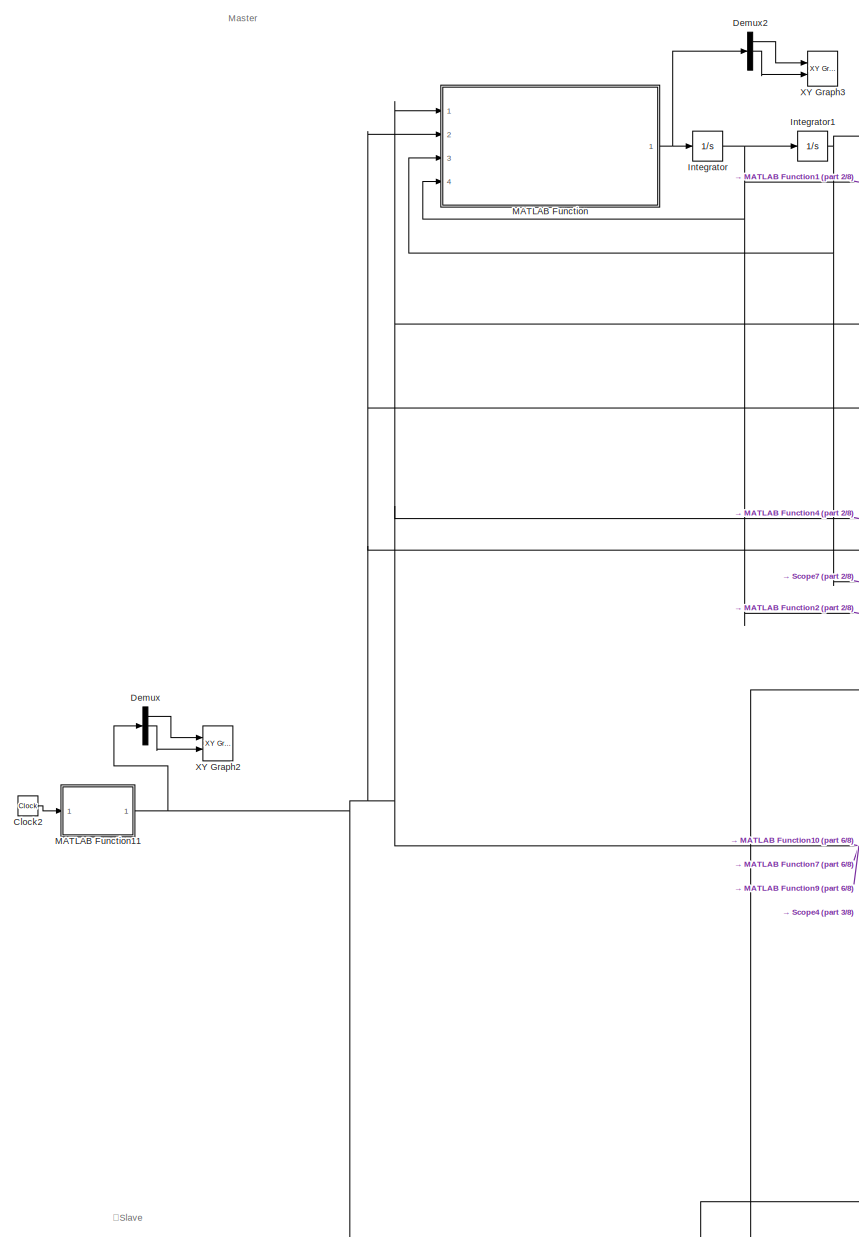
[diagram: root canvas - part 1/8, top left region]
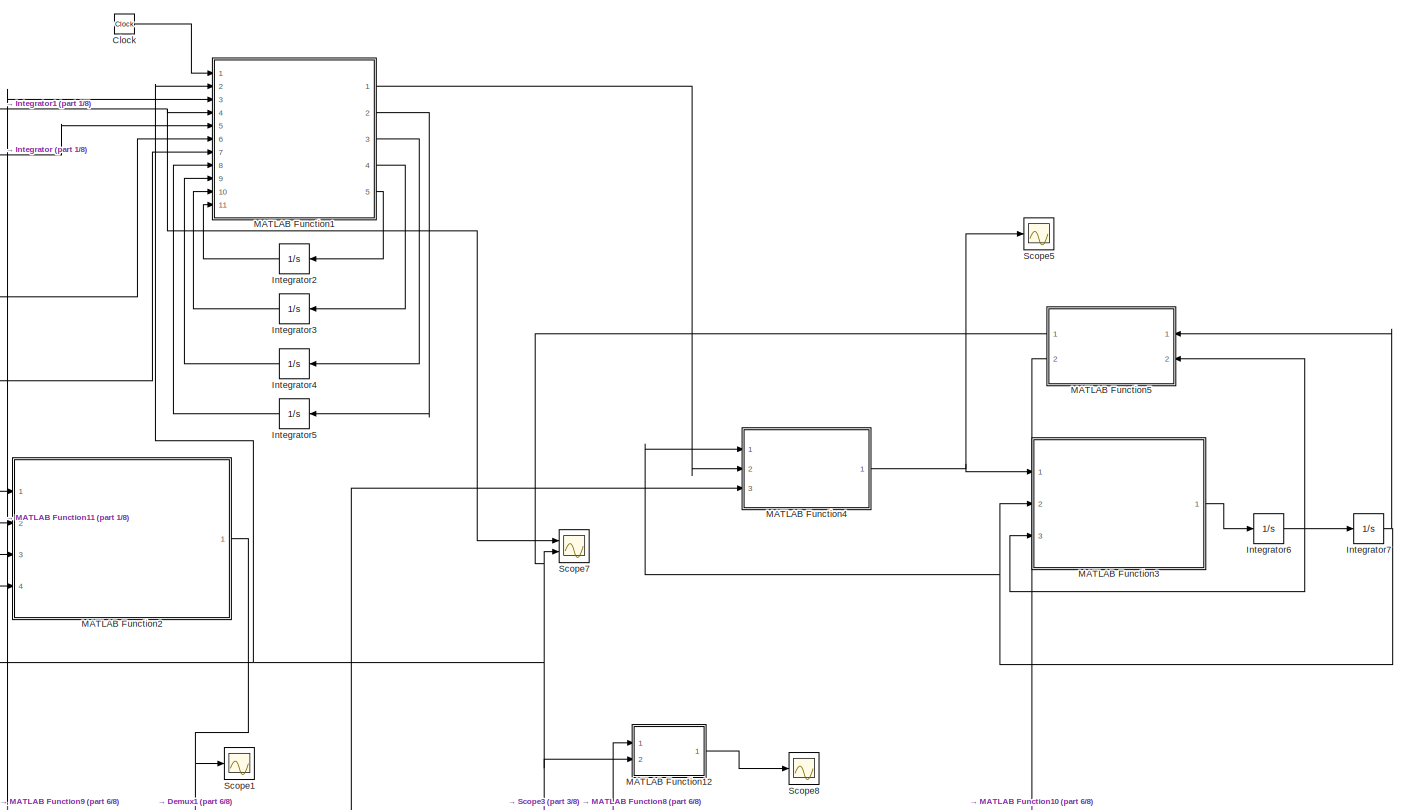
[diagram: root canvas - part 2/8, top center region]
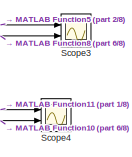
[diagram: root canvas - part 3/8, middle right region]
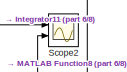
[diagram: root canvas - part 4/8, middle right region]
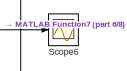
[diagram: root canvas - part 5/8, middle right region]
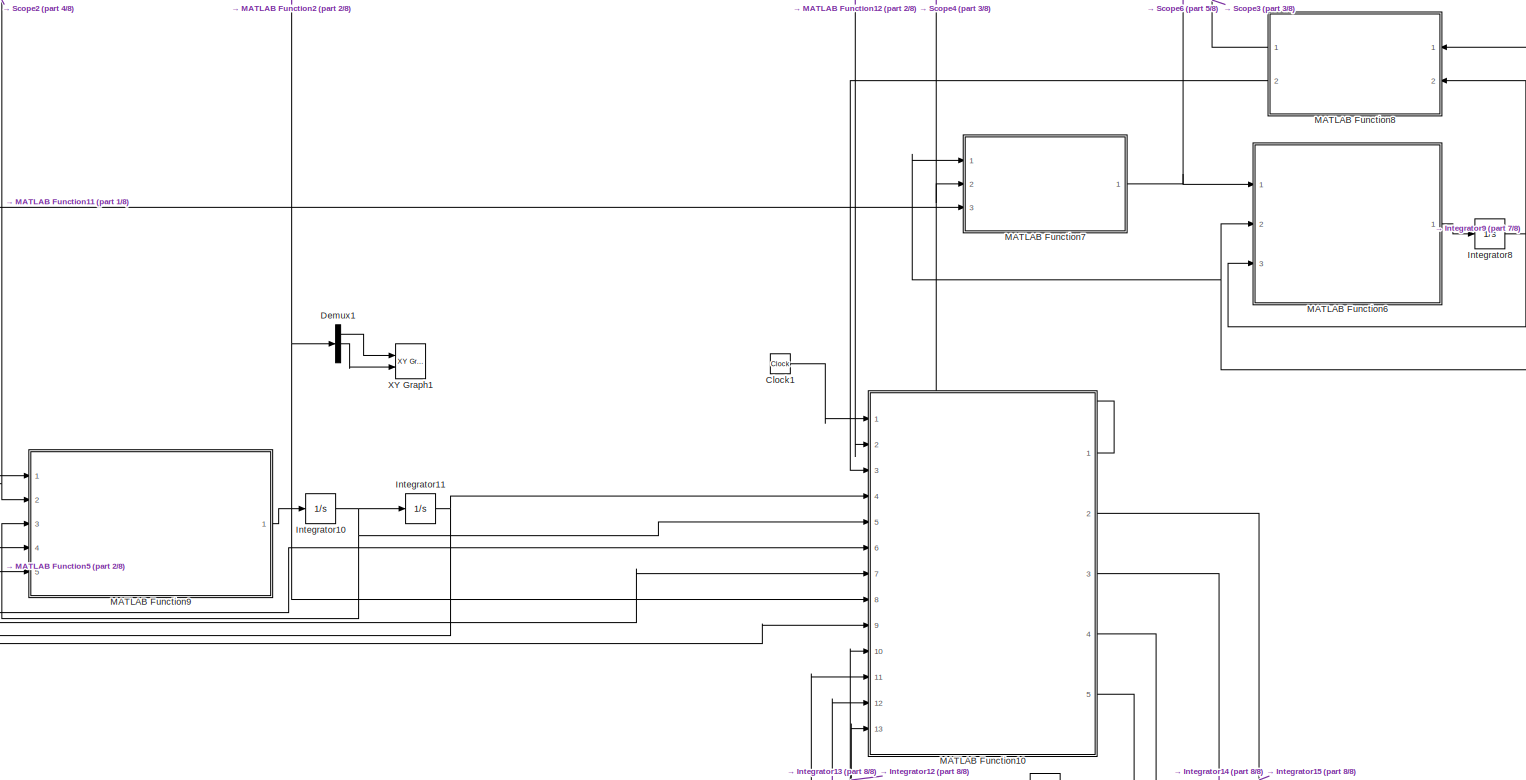
[diagram: root canvas - part 6/8, bottom center region]
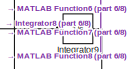
[diagram: root canvas - part 7/8, bottom right region]
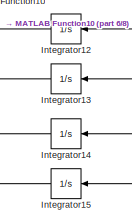
[diagram: root canvas - part 8/8, bottom right region]
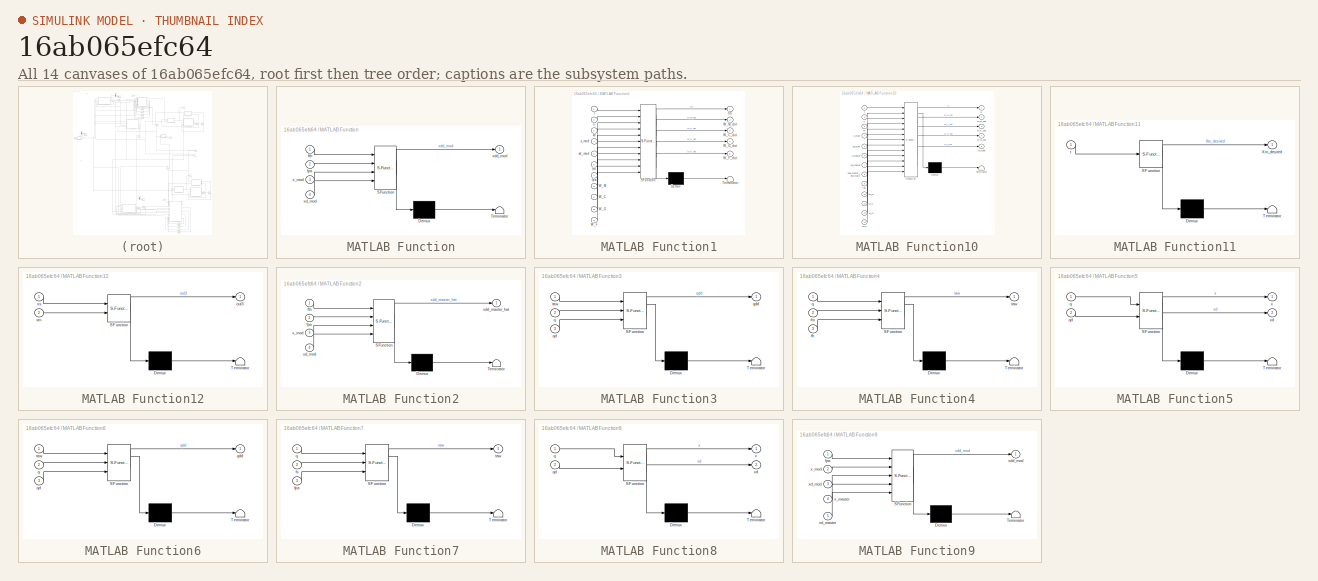
[diagram: thumbnail index - all 14 canvases of the model, root first then tree order]
MODEL slx_16ab065efc64
KIND model
CONFIG AbsTol = auto
CONFIG EnableMultiTasking = off
CONFIG FixedStep = auto
CONFIG MaxStep = auto
CONFIG MinStep = auto
CONFIG RelTol = 1e-3
CONFIG SampleTimeConstraint = Unconstrained
CONFIG SolverName = VariableStepAuto
CONFIG StartTime = 0.0
CONFIG StopTime = 80
BLOCK [Clock] Clock
BLOCK [Clock] Clock1
BLOCK [Clock] Clock2
BLOCK [Demux] Demux
  Outputs = 3
  Ports = [1, 3]
BLOCK [Demux] Demux1
  Outputs = 3
  Ports = [1, 3]
BLOCK [Demux] Demux2
  Outputs = 3
  Ports = [1, 3]
BLOCK [Integrator] Integrator
  InitialCondition = [1 1 1]'*0
  Ports = [1, 1]
BLOCK [Integrator] Integrator1
  InitialCondition = [1 1 1]'*0
  Ports = [1, 1]
BLOCK [Integrator] Integrator10
  InitialCondition = [1 1 1]'*0
  Ports = [1, 1]
BLOCK [Integrator] Integrator11
  InitialCondition = [1 1 1]'*0
  Ports = [1, 1]
BLOCK [Integrator] Integrator12
  InitialCondition = ones(3, 3)
  Ports = [1, 1]
BLOCK [Integrator] Integrator13
  InitialCondition = ones(3, 3)
  Ports = [1, 1]
BLOCK [Integrator] Integrator14
  InitialCondition = ones(9, 3)
  Ports = [1, 1]
BLOCK [Integrator] Integrator15
  InitialCondition = ones(9, 3)
  Ports = [1, 1]
BLOCK [Integrator] Integrator2
  InitialCondition = ones(3, 3)
  Ports = [1, 1]
BLOCK [Integrator] Integrator3
  InitialCondition = ones(3, 3)
  Ports = [1, 1]
BLOCK [Integrator] Integrator4
  InitialCondition = ones(9, 3)
  Ports = [1, 1]
BLOCK [Integrator] Integrator5
  InitialCondition = ones(9, 3)
  Ports = [1, 1]
BLOCK [Integrator] Integrator6
  InitialCondition = [1 1 1]*0
  Ports = [1, 1]
BLOCK [Integrator] Integrator7
  InitialCondition = [1 1 1]*0
  Ports = [1, 1]
BLOCK [Integrator] Integrator8
  InitialCondition = [1 1 1]*0
  Ports = [1, 1]
BLOCK [Integrator] Integrator9
  InitialCondition = [1 1 1]*0
  Ports = [1, 1]
BLOCK [SubSystem] MATLAB Function
  ErrorFcn = Stateflow.Translate.translate
  PermitHierarchicalResolution = ExplicitOnly
  Ports = [4, 1]
  RequestExecContextInheritance = off
  SFBlockType = MATLAB Function
  TreatAsAtomicUnit = on
BLOCK [Demux] MATLAB Function/ Demux 
  Outputs = 1
  Ports = [1, 1]
BLOCK [S-Function] MATLAB Function/ SFunction 
  EnableBusSupport = on
  FunctionName = sf_sfun
  PortCounts = [4 2]
  Ports = [4, 2]
  SFcnIsStateOwnerBlock = off
  SFunctionDeploymentMode = off
  Tag = Stateflow S-Function 6
BLOCK [Terminator] MATLAB Function/ Terminator 
BLOCK [Inport] MATLAB Function/fpa
  Port = 2
BLOCK [Inport] MATLAB Function/fth
BLOCK [Inport] MATLAB Function/x_mod
  Port = 3
BLOCK [Inport] MATLAB Function/xd_mod
  Port = 4
BLOCK [Outport] MATLAB Function/xdd_mod
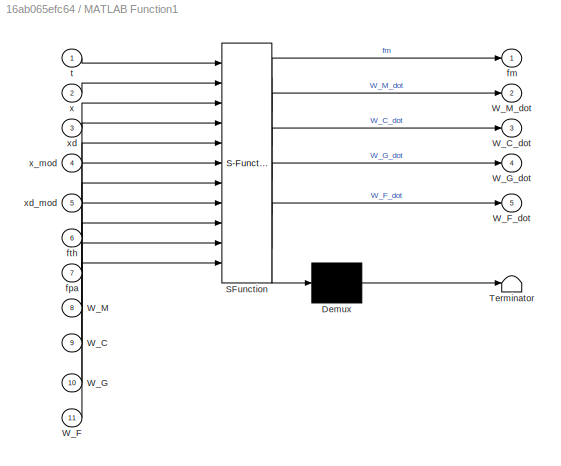
BLOCK [SubSystem] MATLAB Function1
  ErrorFcn = Stateflow.Translate.translate
  PermitHierarchicalResolution = ExplicitOnly
  Ports = [11, 5]
  RequestExecContextInheritance = off
  SFBlockType = MATLAB Function
  TreatAsAtomicUnit = on
BLOCK [Demux] MATLAB Function1/ Demux 
  Outputs = 1
  Ports = [1, 1]
BLOCK [S-Function] MATLAB Function1/ SFunction 
  EnableBusSupport = on
  FunctionName = sf_sfun
  PortCounts = [11 6]
  Ports = [11, 6]
  SFcnIsStateOwnerBlock = off
  SFunctionDeploymentMode = off
  Tag = Stateflow S-Function 13
BLOCK [Terminator] MATLAB Function1/ Terminator 
BLOCK [Inport] MATLAB Function1/W_C
  Port = 9
BLOCK [Outport] MATLAB Function1/W_C_dot
  Port = 3
BLOCK [Inport] MATLAB Function1/W_F
  Port = 11
BLOCK [Outport] MATLAB Function1/W_F_dot
  Port = 5
BLOCK [Inport] MATLAB Function1/W_G
  Port = 10
BLOCK [Outport] MATLAB Function1/W_G_dot
  Port = 4
BLOCK [Inport] MATLAB Function1/W_M
  Port = 8
BLOCK [Outport] MATLAB Function1/W_M_dot
  Port = 2
BLOCK [Outport] MATLAB Function1/fm
BLOCK [Inport] MATLAB Function1/fpa
  Port = 7
BLOCK [Inport] MATLAB Function1/fth
  Port = 6
BLOCK [Inport] MATLAB Function1/t
BLOCK [Inport] MATLAB Function1/x
  Port = 2
BLOCK [Inport] MATLAB Function1/x_mod
  Port = 4
BLOCK [Inport] MATLAB Function1/xd
  Port = 3
BLOCK [Inport] MATLAB Function1/xd_mod
  Port = 5
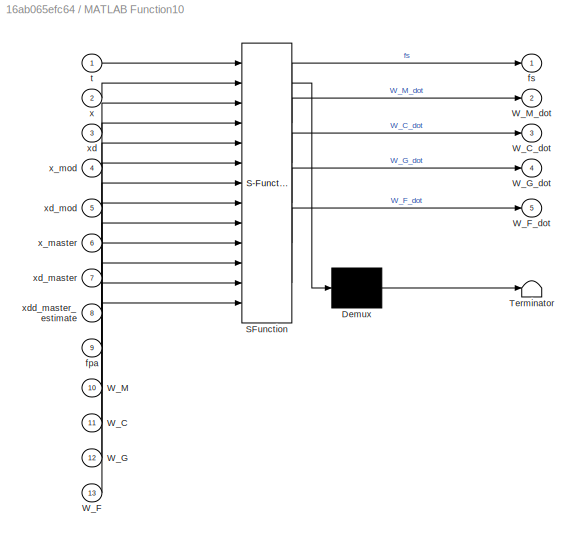
BLOCK [SubSystem] MATLAB Function10
  ErrorFcn = Stateflow.Translate.translate
  PermitHierarchicalResolution = ExplicitOnly
  Ports = [13, 5]
  RequestExecContextInheritance = off
  SFBlockType = MATLAB Function
  TreatAsAtomicUnit = on
BLOCK [Demux] MATLAB Function10/ Demux 
  Outputs = 1
  Ports = [1, 1]
BLOCK [S-Function] MATLAB Function10/ SFunction 
  EnableBusSupport = on
  FunctionName = sf_sfun
  PortCounts = [13 6]
  Ports = [13, 6]
  SFcnIsStateOwnerBlock = off
  SFunctionDeploymentMode = off
  Tag = Stateflow S-Function 10
BLOCK [Terminator] MATLAB Function10/ Terminator 
BLOCK [Inport] MATLAB Function10/W_C
  Port = 11
BLOCK [Outport] MATLAB Function10/W_C_dot
  Port = 3
BLOCK [Inport] MATLAB Function10/W_F
  Port = 13
BLOCK [Outport] MATLAB Function10/W_F_dot
  Port = 5
BLOCK [Inport] MATLAB Function10/W_G
  Port = 12
BLOCK [Outport] MATLAB Function10/W_G_dot
  Port = 4
BLOCK [Inport] MATLAB Function10/W_M
  Port = 10
BLOCK [Outport] MATLAB Function10/W_M_dot
  Port = 2
BLOCK [Inport] MATLAB Function10/fpa
  Port = 9
BLOCK [Outport] MATLAB Function10/fs
BLOCK [Inport] MATLAB Function10/t
BLOCK [Inport] MATLAB Function10/x
  Port = 2
BLOCK [Inport] MATLAB Function10/x_master
  Port = 6
BLOCK [Inport] MATLAB Function10/x_mod
  Port = 4
BLOCK [Inport] MATLAB Function10/xd
  Port = 3
BLOCK [Inport] MATLAB Function10/xd_master
  Port = 7
BLOCK [Inport] MATLAB Function10/xd_mod
  Port = 5
BLOCK [Inport] MATLAB Function10/xdd_master_estimate
  Port = 8
BLOCK [SubSystem] MATLAB Function11
  ErrorFcn = Stateflow.Translate.translate
  PermitHierarchicalResolution = ExplicitOnly
  Ports = [1, 1]
  RequestExecContextInheritance = off
  SFBlockType = MATLAB Function
  TreatAsAtomicUnit = on
BLOCK [Demux] MATLAB Function11/ Demux 
  Outputs = 1
  Ports = [1, 1]
BLOCK [S-Function] MATLAB Function11/ SFunction 
  EnableBusSupport = on
  FunctionName = sf_sfun
  PortCounts = [1 2]
  Ports = [1, 2]
  SFcnIsStateOwnerBlock = off
  SFunctionDeploymentMode = off
  Tag = Stateflow S-Function 5
BLOCK [Terminator] MATLAB Function11/ Terminator 
BLOCK [Outport] MATLAB Function11/Xm_desired
BLOCK [Inport] MATLAB Function11/t
BLOCK [SubSystem] MATLAB Function12
  ErrorFcn = Stateflow.Translate.translate
  PermitHierarchicalResolution = ExplicitOnly
  Ports = [2, 1]
  RequestExecContextInheritance = off
  SFBlockType = MATLAB Function
  TreatAsAtomicUnit = on
BLOCK [Demux] MATLAB Function12/ Demux 
  Outputs = 1
  Ports = [1, 1]
BLOCK [S-Function] MATLAB Function12/ SFunction 
  EnableBusSupport = on
  FunctionName = sf_sfun
  PortCounts = [2 2]
  Ports = [2, 2]
  SFcnIsStateOwnerBlock = off
  SFunctionDeploymentMode = off
  Tag = Stateflow S-Function 7
BLOCK [Terminator] MATLAB Function12/ Terminator 
BLOCK [Outport] MATLAB Function12/out3
BLOCK [Inport] MATLAB Function12/xm
  Port = 2
BLOCK [Inport] MATLAB Function12/xs
BLOCK [SubSystem] MATLAB Function2
  ErrorFcn = Stateflow.Translate.translate
  PermitHierarchicalResolution = ExplicitOnly
  Ports = [4, 1]
  RequestExecContextInheritance = off
  SFBlockType = MATLAB Function
  TreatAsAtomicUnit = on
BLOCK [Demux] MATLAB Function2/ Demux 
  Outputs = 1
  Ports = [1, 1]
BLOCK [S-Function] MATLAB Function2/ SFunction 
  EnableBusSupport = on
  FunctionName = sf_sfun
  PortCounts = [4 2]
  Ports = [4, 2]
  SFcnIsStateOwnerBlock = off
  SFunctionDeploymentMode = off
  Tag = Stateflow S-Function 14
BLOCK [Terminator] MATLAB Function2/ Terminator 
BLOCK [Inport] MATLAB Function2/fpa
  Port = 2
BLOCK [Inport] MATLAB Function2/fth
BLOCK [Inport] MATLAB Function2/x_mod
  Port = 3
BLOCK [Inport] MATLAB Function2/xd_mod
  Port = 4
BLOCK [Outport] MATLAB Function2/xdd_master_hat
BLOCK [SubSystem] MATLAB Function3
  ErrorFcn = Stateflow.Translate.translate
  PermitHierarchicalResolution = ExplicitOnly
  Ports = [3, 1]
  RequestExecContextInheritance = off
  SFBlockType = MATLAB Function
  TreatAsAtomicUnit = on
BLOCK [Demux] MATLAB Function3/ Demux 
  Outputs = 1
  Ports = [1, 1]
BLOCK [S-Function] MATLAB Function3/ SFunction 
  EnableBusSupport = on
  FunctionName = sf_sfun
  PortCounts = [3 2]
  Ports = [3, 2]
  SFcnIsStateOwnerBlock = off
  SFunctionDeploymentMode = off
  Tag = Stateflow S-Function 1
BLOCK [Terminator] MATLAB Function3/ Terminator 
BLOCK [Inport] MATLAB Function3/q
  Port = 2
BLOCK [Inport] MATLAB Function3/qd
  Port = 3
BLOCK [Outport] MATLAB Function3/qdd
BLOCK [Inport] MATLAB Function3/taw
BLOCK [SubSystem] MATLAB Function4
  ErrorFcn = Stateflow.Translate.translate
  PermitHierarchicalResolution = ExplicitOnly
  Ports = [3, 1]
  RequestExecContextInheritance = off
  SFBlockType = MATLAB Function
  TreatAsAtomicUnit = on
BLOCK [Demux] MATLAB Function4/ Demux 
  Outputs = 1
  Ports = [1, 1]
BLOCK [S-Function] MATLAB Function4/ SFunction 
  EnableBusSupport = on
  FunctionName = sf_sfun
  PortCounts = [3 2]
  Ports = [3, 2]
  SFcnIsStateOwnerBlock = off
  SFunctionDeploymentMode = off
  Tag = Stateflow S-Function 3
BLOCK [Terminator] MATLAB Function4/ Terminator 
BLOCK [Inport] MATLAB Function4/fh
  Port = 3
BLOCK [Inport] MATLAB Function4/fm
  Port = 2
BLOCK [Inport] MATLAB Function4/q
BLOCK [Outport] MATLAB Function4/taw
BLOCK [SubSystem] MATLAB Function5
  ErrorFcn = Stateflow.Translate.translate
  PermitHierarchicalResolution = ExplicitOnly
  Ports = [2, 2]
  RequestExecContextInheritance = off
  SFBlockType = MATLAB Function
  TreatAsAtomicUnit = on
BLOCK [Demux] MATLAB Function5/ Demux 
  Outputs = 1
  Ports = [1, 1]
BLOCK [S-Function] MATLAB Function5/ SFunction 
  EnableBusSupport = on
  FunctionName = sf_sfun
  PortCounts = [2 3]
  Ports = [2, 3]
  SFcnIsStateOwnerBlock = off
  SFunctionDeploymentMode = off
  Tag = Stateflow S-Function 4
BLOCK [Terminator] MATLAB Function5/ Terminator 
BLOCK [Inport] MATLAB Function5/q
BLOCK [Inport] MATLAB Function5/qd
  Port = 2
BLOCK [Outport] MATLAB Function5/x
BLOCK [Outport] MATLAB Function5/xd
  Port = 2
BLOCK [SubSystem] MATLAB Function6
  ErrorFcn = Stateflow.Translate.translate
  PermitHierarchicalResolution = ExplicitOnly
  Ports = [3, 1]
  RequestExecContextInheritance = off
  SFBlockType = MATLAB Function
  TreatAsAtomicUnit = on
BLOCK [Demux] MATLAB Function6/ Demux 
  Outputs = 1
  Ports = [1, 1]
BLOCK [S-Function] MATLAB Function6/ SFunction 
  EnableBusSupport = on
  FunctionName = sf_sfun
  PortCounts = [3 2]
  Ports = [3, 2]
  SFcnIsStateOwnerBlock = off
  SFunctionDeploymentMode = off
  Tag = Stateflow S-Function 2
BLOCK [Terminator] MATLAB Function6/ Terminator 
BLOCK [Inport] MATLAB Function6/q
  Port = 2
BLOCK [Inport] MATLAB Function6/qd
  Port = 3
BLOCK [Outport] MATLAB Function6/qdd
BLOCK [Inport] MATLAB Function6/taw
BLOCK [SubSystem] MATLAB Function7
  ErrorFcn = Stateflow.Translate.translate
  PermitHierarchicalResolution = ExplicitOnly
  Ports = [3, 1]
  RequestExecContextInheritance = off
  SFBlockType = MATLAB Function
  TreatAsAtomicUnit = on
BLOCK [Demux] MATLAB Function7/ Demux 
  Outputs = 1
  Ports = [1, 1]
BLOCK [S-Function] MATLAB Function7/ SFunction 
  EnableBusSupport = on
  FunctionName = sf_sfun
  PortCounts = [3 2]
  Ports = [3, 2]
  SFcnIsStateOwnerBlock = off
  SFunctionDeploymentMode = off
  Tag = Stateflow S-Function 8
BLOCK [Terminator] MATLAB Function7/ Terminator 
BLOCK [Inport] MATLAB Function7/fpa
  Port = 3
BLOCK [Inport] MATLAB Function7/fs
  Port = 2
BLOCK [Inport] MATLAB Function7/q
BLOCK [Outport] MATLAB Function7/taw
BLOCK [SubSystem] MATLAB Function8
  ErrorFcn = Stateflow.Translate.translate
  PermitHierarchicalResolution = ExplicitOnly
  Ports = [2, 2]
  RequestExecContextInheritance = off
  SFBlockType = MATLAB Function
  TreatAsAtomicUnit = on
BLOCK [Demux] MATLAB Function8/ Demux 
  Outputs = 1
  Ports = [1, 1]
BLOCK [S-Function] MATLAB Function8/ SFunction 
  EnableBusSupport = on
  FunctionName = sf_sfun
  PortCounts = [2 3]
  Ports = [2, 3]
  SFcnIsStateOwnerBlock = off
  SFunctionDeploymentMode = off
  Tag = Stateflow S-Function 9
BLOCK [Terminator] MATLAB Function8/ Terminator 
BLOCK [Inport] MATLAB Function8/q
BLOCK [Inport] MATLAB Function8/qd
  Port = 2
BLOCK [Outport] MATLAB Function8/x
BLOCK [Outport] MATLAB Function8/xd
  Port = 2
BLOCK [SubSystem] MATLAB Function9
  ErrorFcn = Stateflow.Translate.translate
  PermitHierarchicalResolution = ExplicitOnly
  Ports = [5, 1]
  RequestExecContextInheritance = off
  SFBlockType = MATLAB Function
  TreatAsAtomicUnit = on
BLOCK [Demux] MATLAB Function9/ Demux 
  Outputs = 1
  Ports = [1, 1]
BLOCK [S-Function] MATLAB Function9/ SFunction 
  EnableBusSupport = on
  FunctionName = sf_sfun
  PortCounts = [5 2]
  Ports = [5, 2]
  SFcnIsStateOwnerBlock = off
  SFunctionDeploymentMode = off
  Tag = Stateflow S-Function 11
BLOCK [Terminator] MATLAB Function9/ Terminator 
BLOCK [Inport] MATLAB Function9/fpa
BLOCK [Inport] MATLAB Function9/x_master
  Port = 4
BLOCK [Inport] MATLAB Function9/x_mod
  Port = 2
BLOCK [Inport] MATLAB Function9/xd_master
  Port = 5
BLOCK [Inport] MATLAB Function9/xd_mod
  Port = 3
BLOCK [Outport] MATLAB Function9/xdd_mod
BLOCK [Scope] Scope1
  Floating = off
  NumInputPorts = 1
  Ports = [1]
  ScopeSpecificationString = Simulink.scopes.TimeScopeBlockCfg('CurrentConfiguration', extmgr.ConfigurationSet(extmgr.Configuration('Core','General UI',true,'FigureColor',[1 1 1]),extmgr.Configuration('Core','Source UI',true),extmgr.Configuration('Sources','WiredSimulink',true,'DataLoggingVariableName','ScopeData2'),extmgr.Configuration('Visuals','Time Domain',true,'SerializedDisplays',{struct('MinYLimReal','-118.74959','MaxY...<+1650ch>
BLOCK [Scope] Scope2
  Floating = off
  NumInputPorts = 2
  Ports = [2]
  ScopeSpecificationString = Simulink.scopes.TimeScopeBlockCfg('CurrentConfiguration', extmgr.ConfigurationSet(extmgr.Configuration('Core','General UI',true,'FigureColor',[1 1 1]),extmgr.Configuration('Core','Source UI',true),extmgr.Configuration('Sources','WiredSimulink',true,'DataLoggingVariableName','ScopeData3'),extmgr.Configuration('Visuals','Time Domain',true,'SerializedDisplays',{struct('MinYLimReal','-1.52867','MaxYLi...<+2652ch>
BLOCK [Scope] Scope3
  Floating = off
  NumInputPorts = 2
  Ports = [2]
  ScopeSpecificationString = Simulink.scopes.TimeScopeBlockCfg('CurrentConfiguration', extmgr.ConfigurationSet(extmgr.Configuration('Core','General UI',true,'FigureColor',[1 1 1]),extmgr.Configuration('Core','Source UI',true),extmgr.Configuration('Sources','WiredSimulink',true,'DataLoggingVariableName','ScopeData1'),extmgr.Configuration('Visuals','Time Domain',true,'TimeAxisLabels','All','SerializedDisplays',{struct('MinYLimR...<+2396ch>
BLOCK [Scope] Scope4
  Floating = off
  NumInputPorts = 2
  Ports = [2]
  ScopeSpecificationString = Simulink.scopes.TimeScopeBlockCfg('CurrentConfiguration', extmgr.ConfigurationSet(extmgr.Configuration('Core','General UI',true,'FigureColor',[1 1 1]),extmgr.Configuration('Core','Source UI',true),extmgr.Configuration('Sources','WiredSimulink',true,'DataLoggingVariableName','ScopeData5'),extmgr.Configuration('Visuals','Time Domain',true,'SerializedDisplays',{struct('MinYLimReal','-12419.09842','Ma...<+2237ch>
BLOCK [Scope] Scope5
  Floating = off
  NumInputPorts = 1
  Ports = [1]
  ScopeSpecificationString = Simulink.scopes.TimeScopeBlockCfg('CurrentConfiguration', extmgr.ConfigurationSet(extmgr.Configuration('Core','General UI',true,'FigureColor',[1 1 1]),extmgr.Configuration('Core','Source UI',true),extmgr.Configuration('Sources','WiredSimulink',true,'DataLoggingVariableName','ScopeData1'),extmgr.Configuration('Visuals','Time Domain',true,'SerializedDisplays',{struct('MinYLimReal','-140.711','MaxYLi...<+1882ch>
BLOCK [Scope] Scope6
  Floating = off
  NumInputPorts = 1
  Ports = [1]
  ScopeSpecificationString = Simulink.scopes.TimeScopeBlockCfg('CurrentConfiguration', extmgr.ConfigurationSet(extmgr.Configuration('Core','General UI',true,'FigureColor',[1 1 1]),extmgr.Configuration('Core','Source UI',true),extmgr.Configuration('Sources','WiredSimulink',true,'DataLoggingVariableName','ScopeData2'),extmgr.Configuration('Visuals','Time Domain',true,'SerializedDisplays',{struct('MinYLimReal','-182.25411','MaxY...<+1884ch>
BLOCK [Scope] Scope7
  Floating = off
  NumInputPorts = 2
  Ports = [2]
  ScopeSpecificationString = Simulink.scopes.TimeScopeBlockCfg('CurrentConfiguration', extmgr.ConfigurationSet(extmgr.Configuration('Core','General UI',true,'FigureColor',[1 1 1]),extmgr.Configuration('Core','Source UI',true),extmgr.Configuration('Sources','WiredSimulink',true,'DataLoggingVariableName','ScopeData1'),extmgr.Configuration('Visuals','Time Domain',true,'TimeAxisLabels','All','SerializedDisplays',{struct('MinYLimR...<+2515ch>
BLOCK [Scope] Scope8
  Floating = off
  NumInputPorts = 1
  Ports = [1]
  ScopeSpecificationString = Simulink.scopes.TimeScopeBlockCfg('CurrentConfiguration', extmgr.ConfigurationSet(extmgr.Configuration('Core','General UI',true,'FigureColor',[1 1 1]),extmgr.Configuration('Core','Source UI',true),extmgr.Configuration('Sources','WiredSimulink',true,'DataLoggingVariableName','ScopeData2'),extmgr.Configuration('Visuals','Time Domain',true,'SerializedDisplays',{struct('MinYLimReal','-0.05138','MaxYLi...<+2025ch>
BLOCK [Reference] XY Graph1  REF=simulink/Sinks/XY Graph
  Ports = [2]
  SourceBlock = simulink/Sinks/XY Graph
  SourceProductBaseCode = SL
  SourceType = XY scope.
BLOCK [Reference] XY Graph2  REF=simulink/Sinks/XY Graph
  Ports = [2]
  SourceBlock = simulink/Sinks/XY Graph
  SourceProductBaseCode = SL
  SourceType = XY scope.
BLOCK [Reference] XY Graph3  REF=simulink/Sinks/XY Graph
  Ports = [2]
  SourceBlock = simulink/Sinks/XY Graph
  SourceProductBaseCode = SL
  SourceType = XY scope.
ANNOTATION (root): Master
ANNOTATION (root): ُSlave
LINE Clock1:1 -> MATLAB Function10:1
LINE Clock2:1 -> MATLAB Function11:1
LINE Clock:1 -> MATLAB Function1:1
LINE Demux1:1 -> XY Graph1:1
LINE Demux1:2 -> XY Graph1:2
LINE Demux2:1 -> XY Graph3:1
LINE Demux2:2 -> XY Graph3:2
LINE Demux:1 -> XY Graph2:1
LINE Demux:2 -> XY Graph2:2
NET Integrator10:1 -> Integrator11:1, MATLAB Function10:5, MATLAB Function9:3
NET Integrator11:1 -> MATLAB Function10:4, MATLAB Function9:2, Scope2:1
LINE Integrator12:1 -> MATLAB Function10:13
LINE Integrator13:1 -> MATLAB Function10:12
LINE Integrator14:1 -> MATLAB Function10:11
LINE Integrator15:1 -> MATLAB Function10:10
NET Integrator1:1 -> MATLAB Function1:4, MATLAB Function2:3, MATLAB Function:3, Scope7:1
LINE Integrator2:1 -> MATLAB Function1:11
LINE Integrator3:1 -> MATLAB Function1:10
LINE Integrator4:1 -> MATLAB Function1:9
LINE Integrator5:1 -> MATLAB Function1:8
NET Integrator6:1 -> Integrator7:1, MATLAB Function3:3, MATLAB Function5:2
NET Integrator7:1 -> MATLAB Function3:2, MATLAB Function4:1, MATLAB Function5:1
NET Integrator8:1 -> Integrator9:1, MATLAB Function6:3, MATLAB Function8:2
NET Integrator9:1 -> MATLAB Function6:2, MATLAB Function7:1, MATLAB Function8:1
NET Integrator:1 -> Integrator1:1, MATLAB Function1:5, MATLAB Function2:4, MATLAB Function:4
NET MATLAB Function10:1 -> MATLAB Function7:2, Scope4:2
LINE MATLAB Function10:2 -> Integrator15:1
LINE MATLAB Function10:3 -> Integrator14:1
LINE MATLAB Function10:4 -> Integrator13:1
LINE MATLAB Function10:5 -> Integrator12:1
NET MATLAB Function11:1 -> Demux:1, MATLAB Function10:9, MATLAB Function1:6, MATLAB Function1:7, MATLAB Function2:1, MATLAB Function2:2, MATLAB Function4:3, MATLAB Function7:3, MATLAB Function9:1, MATLAB Function:1, MATLAB Function:2, Scope4:1
LINE MATLAB Function12:1 -> Scope8:1
LINE MATLAB Function1:1 -> MATLAB Function4:2
LINE MATLAB Function1:2 -> Integrator5:1
LINE MATLAB Function1:3 -> Integrator4:1
LINE MATLAB Function1:4 -> Integrator3:1
LINE MATLAB Function1:5 -> Integrator2:1
NET MATLAB Function2:1 -> Demux1:1, MATLAB Function10:8, Scope1:1
LINE MATLAB Function3:1 -> Integrator6:1
NET MATLAB Function4:1 -> MATLAB Function3:1, Scope5:1
NET MATLAB Function5:1 -> MATLAB Function10:6, MATLAB Function12:2, MATLAB Function1:2, MATLAB Function9:4, Scope3:1, Scope7:2
NET MATLAB Function5:2 -> MATLAB Function10:7, MATLAB Function1:3, MATLAB Function9:5
LINE MATLAB Function6:1 -> Integrator8:1
NET MATLAB Function7:1 -> MATLAB Function6:1, Scope6:1
NET MATLAB Function8:1 -> MATLAB Function10:2, MATLAB Function12:1, Scope2:2, Scope3:2
LINE MATLAB Function8:2 -> MATLAB Function10:3
LINE MATLAB Function9:1 -> Integrator10:1
NET MATLAB Function:1 -> Demux2:1, Integrator:1
note: NET lines group one-source signal fan-out (src -> all destinations, sorted); 1:1 wires keep LINE
CHART MATLAB Function10 states=1 transitions=1
  STATE_LABEL 'eML_blk_kernel()'
  STATE_LABEL 'SCRIPT:\nfunction [fs, W_M_dot, W_C_dot, W_G_dot, W_F_dot] = slave_controller(t, x, xd, x_mod, xd_mod, x_master, xd_master, xdd_master_estimate, fpa, W_M, W_C, W_G, W_F)\n\nlanda1 = 1;\nlanda2 = 3;\nlanda3 = 0;\nkp = 1;\nm = eye(3)*15;\nc = eye(3)*2500;\nk = eye(3)*14000;\ninvm = inv(m);\n\nfn = 5;\n    \nzz = [1; sin(fn*t); sin(2*fn*t)];\nZ_M = [zz zeros(3, 2) ; zeros(3, 1) zz zeros(3, 1); zeros(3, 2) zz];\nZ_C ...<+722ch>'
CHART MATLAB Function9 states=1 transitions=1
  STATE_LABEL 'eML_blk_kernel()'
  STATE_LABEL 'SCRIPT:\nfunction xdd_mod = slave_impedance_model(fpa, x_mod, xd_mod, x_master, xd_master)\n\nkp = 1;\nm = eye(3)*30;\nc = eye(3)*2500;\nk = eye(3)*12000;\n\n\nxdd_mod = pinv(m)*(-fpa - c*(xd_mod - kp*xd_master) - k*(x_mod - kp*x_master));\n\nend\n'
CHART MATLAB Function1 states=1 transitions=1
  STATE_LABEL 'eML_blk_kernel()'
  STATE_LABEL 'SCRIPT:\nfunction [fm, W_M_dot, W_C_dot, W_G_dot, W_F_dot] = master_controller(t, x, xd, x_mod, xd_mod, fth, fpa, W_M, W_C, W_G, W_F)\n\nkf = 2;\nlanda1 = 1;\nlanda2 = 3;\nlanda3 = 0;\nm = eye(3)*0.2;\nc = eye(3)*3;\nk = eye(3)*9;\ninvm = inv(m);\n\nfn = 5;\n    \nzz = [1; sin(fn*t); sin(2*fn*t)];\nZ_M = [zz zeros(3, 2) ; zeros(3, 1) zz zeros(3, 1); zeros(3, 2) zz];\nZ_C = Z_M;\nZ_G = zz; % note G is not like abov...<+605ch>'
CHART MATLAB Function2 states=1 transitions=1
  STATE_LABEL 'eML_blk_kernel()'
  STATE_LABEL 'SCRIPT:\nfunction xdd_master_hat = master_acc_estimator(fth, fpa, x_mod, xd_mod)\n\nkf = 2;\nm = eye(3)*0.2;\nc = eye(3)*3;\nk = eye(3)*9;\n\n\n\ninvm = inv(m);\nxdd_master_hat = invm*(fth-kf*fpa) - invm*c*xd_mod - invm*k*x_mod;\n\n\n\nend'
CHART MATLAB Function3 states=1 transitions=1
  STATE_LABEL 'eML_blk_kernel()'
  STATE_LABEL 'SCRIPT:\nfunction qdd = system(taw, q, qd)\n\nq1 = q(1);\nq2 = q(2);\nq3 = q(3);\n\nqd1 = qd(1);\nqd2 = qd(2);\nqd3 = qd(3);\n\nd11=0.00166;\nd22=0.018+0.00212*cos(q1)^2+0.0016*sin(q1)^2;\nd33=0.0096+0.00426*sin(q2)^2+cos(q2)^2*(0.0141+0.00212*sin(q1)^2+0.0016*cos(q1)^2);\nD=[d11,0,0;0,d22,0;0,0,d33];\nc12=0.00052*cos(q1)*sin(q1)*qd1;\nc13=-0.00052*cos(q2)^2*cos(q1)*sin(q1)*qd3;\nc21=1/2*(-0.00104*cos(q1)*sin(q1))...<+777ch>'
CHART MATLAB Function6 states=1 transitions=1
  STATE_LABEL 'eML_blk_kernel()'
  STATE_LABEL 'SCRIPT:\nfunction qdd = system(taw, q, qd)\n\nq1 = q(1);\nq2 = q(2);\nq3 = q(3);\n\nqd1 = qd(1);\nqd2 = qd(2);\nqd3 = qd(3);\n\nd11=0.00166;\nd22=0.018+0.00212*cos(q1)^2+0.0016*sin(q1)^2;\nd33=0.0096+0.00426*sin(q2)^2+cos(q2)^2*(0.0141+0.00212*sin(q1)^2+0.0016*cos(q1)^2);\nD=[d11,0,0;0,d22,0;0,0,d33];\nc12=0.00052*cos(q1)*sin(q1)*qd1;\nc13=-0.00052*cos(q2)^2*cos(q1)*sin(q1)*qd3;\nc21=1/2*(-0.00104*cos(q1)*sin(q1))...<+770ch>'
CHART MATLAB Function4 states=1 transitions=1
  STATE_LABEL 'eML_blk_kernel()'
  STATE_LABEL "SCRIPT:\nfunction taw = inverse_kinematic(q, fm, fh)\n\nq1 = q(1);\nq2 = q(2);\nq3 = q(3);\n\nJ = eye(3);\n\ntaw = J'*(fm + fh);\n\n\nend\n"
CHART MATLAB Function5 states=1 transitions=1
  STATE_LABEL 'eML_blk_kernel()'
  STATE_LABEL 'SCRIPT:\nfunction [x, xd] = kinematic(q, qd)\n\nq1 = q(1);\nq2 = q(2);\nq3 = q(3);\n\nJ = eye(3);\n\n\n\nx = J*q;\nxd = J*qd;\n\nend'
CHART MATLAB Function11 states=1 transitions=1
  STATE_LABEL 'eML_blk_kernel()'
  STATE_LABEL 'SCRIPT:\nfunction Xm_desired  = fcn(t)\nx=10;\ny=10;\nz=0;\n\nif t<10\nx=t;\ny=0;\nz=0;\nend \n\nif t<20 && t>10\nx=10-t;\ny=0;\nz=0;\nend\n\nif t<30 && t>20\nx=0;\ny=20-t;\nz=0;\nend\n\nif t<40 && t>30\nx=0;\ny=40-t;\nz=0;\nend\n\nif t<50 && t>40\nx=50-t;\ny=50-t;\nz=0;\nend\n\nif t<60 && t>50\nx=-60+t;\ny=60-t;\nz=0;\nend\n\nif t<70 && t>60\nx=70-t;\ny=-70+t;\nz=0;\nend\n\nif t<80 && t>70\nx=-80+t;\ny=-80+t;\nz=0;\nend\n\nXm_desired = [x; y; z];\n'
CHART MATLAB Function states=1 transitions=1
  STATE_LABEL 'eML_blk_kernel()'
  STATE_LABEL 'SCRIPT:\nfunction xdd_mod = master_impedance_model(fth, fpa, x_mod, xd_mod)\n\nkf = 2;\nm = eye(3)*0.2;\nc = eye(3)*3;\nk = eye(3)*9;\n\n\nxdd_mod = pinv(m)*(fth - kf*fpa - c*xd_mod - k*x_mod);\n\nend\n'
CHART MATLAB Function12 states=1 transitions=1
  STATE_LABEL 'eML_blk_kernel()'
  STATE_LABEL 'SCRIPT:\nfunction out3  = fcn(xs , xm)\n\nout3 = [xs(3),xm(3)];\n'
CHART MATLAB Function7 states=1 transitions=1
  STATE_LABEL 'eML_blk_kernel()'
  STATE_LABEL "SCRIPT:\nfunction taw = inverse_kinematic(q, fs, fpa)\n\nq1 = q(1);\nq2 = q(2);\nq3 = q(3);\n\nJ = eye(3);\n\ntaw = J'*(fs + fpa);\n\n\nend\n"
CHART MATLAB Function8 states=1 transitions=1
  STATE_LABEL 'eML_blk_kernel()'
  STATE_LABEL 'SCRIPT:\nfunction [x, xd] = kinematic(q, qd)\n\nq1 = q(1);\nq2 = q(2);\nq3 = q(3);\n\nJ = eye(3);\n\n\nx = J*q;\nxd = J*qd;\n\nend'
CHART  states=0 transitions=0
CHART  states=0 transitions=0
CHART  states=0 transitions=0
CHART  states=0 transitions=0
CHART  states=0 transitions=0
CHART  states=0 transitions=0
CHART  states=0 transitions=0
CHART  states=0 transitions=0
CHART  states=0 transitions=0
CHART  states=0 transitions=0
CHART  states=0 transitions=0
CHART  states=0 transitions=0
CHART  states=0 transitions=0
